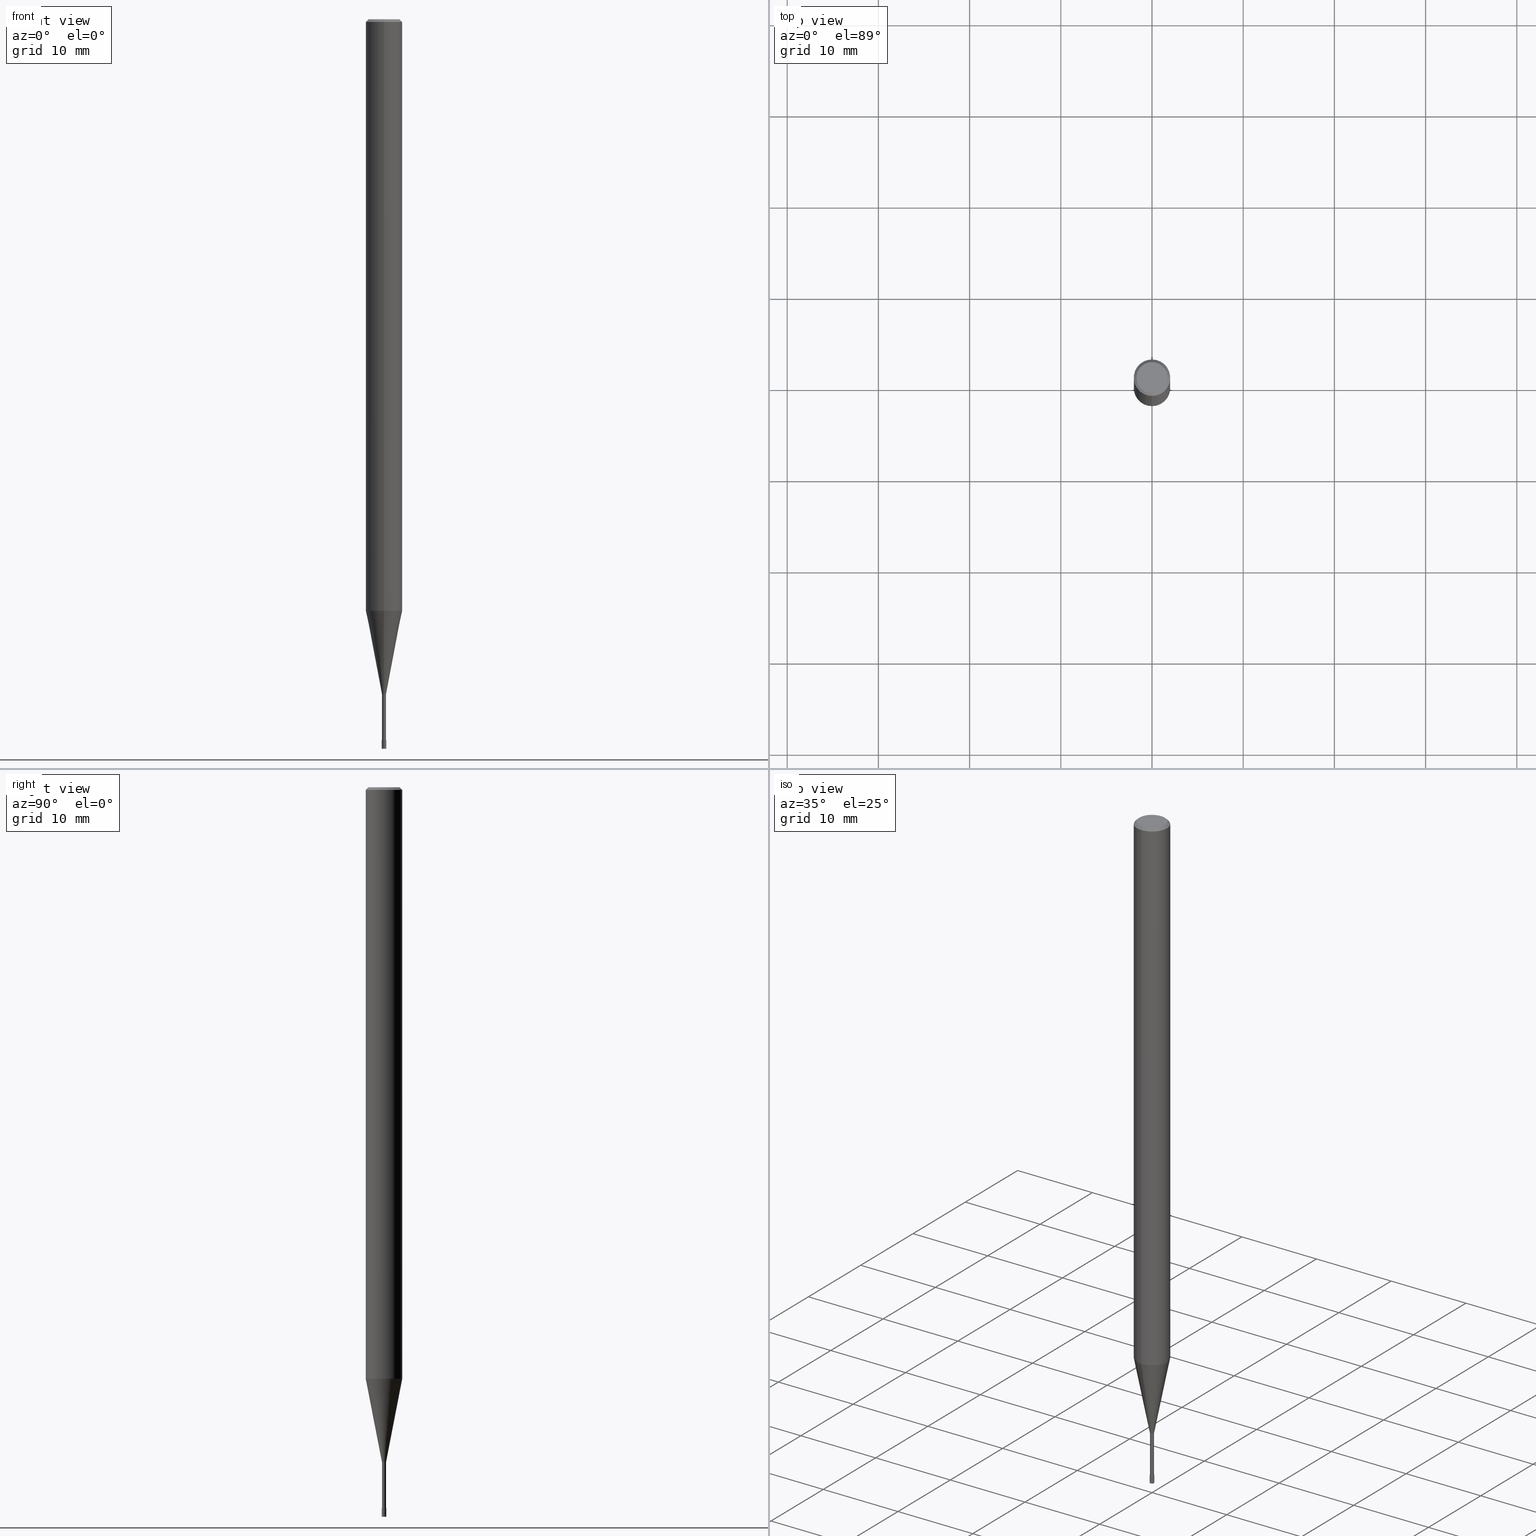
[diagram: canonical four-view strip — front | top / right | iso, engineering-drawing reading convention]
A machine part, canonical four-view strip (front | top / right | iso — engineering-drawing reading convention). The complete STEP part file that produces these views, byte-faithful:
ISO-10303-21;
HEADER;
FILE_DESCRIPTION(('no description'),'unknown implementation level');
FILE_NAME('CPRL2005-6-Huellk.stp','  ',('CIMSOURCE GmbH'),('CADClick - KiM GmbH - www.kimweb.de'),'unknown preprocess','ACIS','unknown authorization');
FILE_SCHEMA(('automotive_design'));
ENDSEC;
DATA;
#1=MECHANICAL_DESIGN_GEOMETRIC_PRESENTATION_REPRESENTATION(' ',(#14,#15,#16,#17,#18,#19,#20,#21,#22,#23,#24,#25,#26,#27,#28,#29,#30,#31,#32,#33,#34,#35,#36,#37,#38,#39,#40,#41,#42,#43,#44,#45,#46,#47,#48,#49,#50,#51,#52,#53,#54,#55,#56,#57,#58,#59,#60,#61,#62,#63,#64,#65,#66,#67,#68,#69,#70,#71,#72),#10);
#2=PRODUCT_DEFINITION_CONTEXT('',#73,'design');
#3=APPLICATION_PROTOCOL_DEFINITION('INTERNATIONAL STANDARD','automotive_design',1994,#73);
#4=PRODUCT_CATEGORY_RELATIONSHIP('NONE','NONE',#74,#75);
#5=SHAPE_DEFINITION_REPRESENTATION(#76,#77);
#6=PRODUCT_DEFINITION_CONTEXT('',#78,'design');
#7=APPLICATION_PROTOCOL_DEFINITION('INTERNATIONAL STANDARD','automotive_design',1994,#78);
#8=PRODUCT_CATEGORY_RELATIONSHIP('NONE','NONE',#79,#80);
#9=SHAPE_DEFINITION_REPRESENTATION(#81,#82);
#10= (GEOMETRIC_REPRESENTATION_CONTEXT(3)GLOBAL_UNCERTAINTY_ASSIGNED_CONTEXT((#85))GLOBAL_UNIT_ASSIGNED_CONTEXT((#87,#88,#89))REPRESENTATION_CONTEXT('NONE','WORKSPACE'));
#14=STYLED_ITEM('',(#91),#92);
#15=STYLED_ITEM('',(#93),#94);
#16=STYLED_ITEM('',(#95),#96);
#17=STYLED_ITEM('',(#97),#98);
#18=STYLED_ITEM('',(#99),#100);
#19=STYLED_ITEM('',(#101),#102);
#20=STYLED_ITEM('',(#103),#104);
#21=STYLED_ITEM('',(#105),#106);
#22=STYLED_ITEM('',(#107),#108);
#23=STYLED_ITEM('',(#109),#110);
#24=STYLED_ITEM('',(#111),#112);
#25=STYLED_ITEM('',(#113),#114);
#26=STYLED_ITEM('',(#115),#116);
#27=STYLED_ITEM('',(#117),#118);
#28=STYLED_ITEM('',(#119),#120);
#29=STYLED_ITEM('',(#121),#122);
#30=STYLED_ITEM('',(#123),#124);
#31=STYLED_ITEM('',(#125),#126);
#32=STYLED_ITEM('',(#127),#128);
#33=STYLED_ITEM('',(#129),#130);
#34=STYLED_ITEM('',(#131),#132);
#35=STYLED_ITEM('',(#133),#134);
#36=STYLED_ITEM('',(#135),#136);
#37=STYLED_ITEM('',(#137),#138);
#38=STYLED_ITEM('',(#139),#140);
#39=STYLED_ITEM('',(#141),#142);
#40=STYLED_ITEM('',(#143),#144);
#41=STYLED_ITEM('',(#145),#146);
#42=STYLED_ITEM('',(#147),#148);
#43=STYLED_ITEM('',(#149),#150);
#44=STYLED_ITEM('',(#151),#152);
#45=STYLED_ITEM('',(#153),#154);
#46=STYLED_ITEM('',(#155),#156);
#47=STYLED_ITEM('',(#157),#158);
#48=STYLED_ITEM('',(#159),#160);
#49=STYLED_ITEM('',(#161),#162);
#50=STYLED_ITEM('',(#163),#164);
#51=STYLED_ITEM('',(#165),#166);
#52=STYLED_ITEM('',(#167),#168);
#53=STYLED_ITEM('',(#169),#170);
#54=STYLED_ITEM('',(#171),#172);
#55=STYLED_ITEM('',(#173),#174);
#56=STYLED_ITEM('',(#175),#176);
#57=STYLED_ITEM('',(#177),#178);
#58=STYLED_ITEM('',(#179),#180);
#59=STYLED_ITEM('',(#181),#182);
#60=STYLED_ITEM('',(#183),#184);
#61=STYLED_ITEM('',(#185),#186);
#62=STYLED_ITEM('',(#187),#188);
#63=STYLED_ITEM('',(#189),#190);
#64=STYLED_ITEM('',(#191),#192);
#65=STYLED_ITEM('',(#193),#194);
#66=STYLED_ITEM('',(#195),#196);
#67=STYLED_ITEM('',(#197),#198);
#68=STYLED_ITEM('',(#199),#200);
#69=STYLED_ITEM('',(#201),#202);
#70=STYLED_ITEM('',(#203),#204);
#71=STYLED_ITEM('',(#205),#206);
#72=STYLED_ITEM('',(#207),#208);
#73=APPLICATION_CONTEXT(' ');
#74=PRODUCT_CATEGORY('part','NONE');
#75=PRODUCT_RELATED_PRODUCT_CATEGORY('detail',' ',(#209));
#76=PRODUCT_DEFINITION_SHAPE('NONE','NONE',#210);
#77=ADVANCED_BREP_SHAPE_REPRESENTATION('1',(#106,#211),#10);
#78=APPLICATION_CONTEXT(' ');
#79=PRODUCT_CATEGORY('part','NONE');
#80=PRODUCT_RELATED_PRODUCT_CATEGORY('detail',' ',(#212));
#81=PRODUCT_DEFINITION_SHAPE('NONE','NONE',#213);
#82=ADVANCED_BREP_SHAPE_REPRESENTATION('2',(#120,#214),#10);
#85=UNCERTAINTY_MEASURE_WITH_UNIT(LENGTH_MEASURE(1.0E-006),#87,'','');
#87= (CONVERSION_BASED_UNIT('MILLIMETRE',#217)LENGTH_UNIT()NAMED_UNIT(#220));
#88= (NAMED_UNIT(#222)PLANE_ANGLE_UNIT()SI_UNIT($,.RADIAN.));
#89= (NAMED_UNIT(#222)SOLID_ANGLE_UNIT()SI_UNIT($,.STERADIAN.));
#91=PRESENTATION_STYLE_ASSIGNMENT((#228));
#92=VERTEX_POINT('',#229);
#93=PRESENTATION_STYLE_ASSIGNMENT((#230));
#94=ADVANCED_FACE('',(#231),#232,.T.);
#95=PRESENTATION_STYLE_ASSIGNMENT((#233));
#96=ADVANCED_FACE('',(#234),#235,.T.);
#97=PRESENTATION_STYLE_ASSIGNMENT((#236));
#98=ADVANCED_FACE('',(#237),#238,.T.);
#99=PRESENTATION_STYLE_ASSIGNMENT((#239));
#100=VERTEX_POINT('',#240);
#101=PRESENTATION_STYLE_ASSIGNMENT((#241));
#102=ADVANCED_FACE('',(#242),#243,.T.);
#103=PRESENTATION_STYLE_ASSIGNMENT((#244));
#104=VERTEX_POINT('',#245);
#105=PRESENTATION_STYLE_ASSIGNMENT((#246));
#106=MANIFOLD_SOLID_BREP('1',#247);
#107=PRESENTATION_STYLE_ASSIGNMENT((#248));
#108=EDGE_CURVE('',#152,#170,#249,.T.);
#109=PRESENTATION_STYLE_ASSIGNMENT((#250));
#110=ADVANCED_FACE('',(#251),#252,.T.);
#111=PRESENTATION_STYLE_ASSIGNMENT((#253));
#112=ADVANCED_FACE('',(#254),#255,.T.);
#113=PRESENTATION_STYLE_ASSIGNMENT((#256));
#114=VERTEX_POINT('',#257);
#115=PRESENTATION_STYLE_ASSIGNMENT((#258));
#116=EDGE_CURVE('',#182,#176,#259,.T.);
#117=PRESENTATION_STYLE_ASSIGNMENT((#260));
#118=ADVANCED_FACE('',(#261),#262,.T.);
#119=PRESENTATION_STYLE_ASSIGNMENT((#263));
#120=MANIFOLD_SOLID_BREP('2',#264);
#121=PRESENTATION_STYLE_ASSIGNMENT((#265));
#122=VERTEX_POINT('',#266);
#123=PRESENTATION_STYLE_ASSIGNMENT((#267));
#124=EDGE_CURVE('',#170,#100,#268,.T.);
#125=PRESENTATION_STYLE_ASSIGNMENT((#269));
#126=EDGE_CURVE('',#152,#200,#270,.T.);
#127=PRESENTATION_STYLE_ASSIGNMENT((#271));
#128=EDGE_CURVE('',#182,#122,#272,.T.);
#129=PRESENTATION_STYLE_ASSIGNMENT((#273));
#130=ADVANCED_FACE('',(#274),#275,.T.);
#131=PRESENTATION_STYLE_ASSIGNMENT((#276));
#132=VERTEX_POINT('',#277);
#133=PRESENTATION_STYLE_ASSIGNMENT((#278));
#134=EDGE_CURVE('',#132,#182,#279,.T.);
#135=PRESENTATION_STYLE_ASSIGNMENT((#280));
#136=EDGE_CURVE('',#196,#176,#281,.T.);
#137=PRESENTATION_STYLE_ASSIGNMENT((#282));
#138=EDGE_CURVE('',#200,#152,#283,.T.);
#139=PRESENTATION_STYLE_ASSIGNMENT((#284));
#140=EDGE_CURVE('',#176,#182,#285,.T.);
#141=PRESENTATION_STYLE_ASSIGNMENT((#286));
#142=EDGE_CURVE('',#164,#204,#287,.T.);
#143=PRESENTATION_STYLE_ASSIGNMENT((#288));
#144=EDGE_CURVE('',#204,#190,#289,.T.);
#145=PRESENTATION_STYLE_ASSIGNMENT((#290));
#146=EDGE_CURVE('',#200,#104,#291,.T.);
#147=PRESENTATION_STYLE_ASSIGNMENT((#292));
#148=EDGE_CURVE('',#176,#92,#293,.T.);
#149=PRESENTATION_STYLE_ASSIGNMENT((#294));
#150=EDGE_CURVE('',#132,#92,#295,.T.);
#151=PRESENTATION_STYLE_ASSIGNMENT((#296));
#152=VERTEX_POINT('',#297);
#153=PRESENTATION_STYLE_ASSIGNMENT((#298));
#154=EDGE_CURVE('',#100,#170,#299,.T.);
#155=PRESENTATION_STYLE_ASSIGNMENT((#300));
#156=ADVANCED_FACE('',(#301),#302,.T.);
#157=PRESENTATION_STYLE_ASSIGNMENT((#303));
#158=EDGE_CURVE('',#114,#164,#304,.T.);
#159=PRESENTATION_STYLE_ASSIGNMENT((#305));
#160=EDGE_CURVE('',#180,#104,#306,.T.);
#161=PRESENTATION_STYLE_ASSIGNMENT((#307));
#162=EDGE_CURVE('',#164,#114,#308,.T.);
#163=PRESENTATION_STYLE_ASSIGNMENT((#309));
#164=VERTEX_POINT('',#310);
#165=PRESENTATION_STYLE_ASSIGNMENT((#311));
#166=ADVANCED_FACE('',(#312),#313,.T.);
#167=PRESENTATION_STYLE_ASSIGNMENT((#314));
#168=ADVANCED_FACE('',(#315),#316,.T.);
#169=PRESENTATION_STYLE_ASSIGNMENT((#317));
#170=VERTEX_POINT('',#318);
#171=PRESENTATION_STYLE_ASSIGNMENT((#319));
#172=EDGE_CURVE('',#122,#196,#320,.T.);
#173=PRESENTATION_STYLE_ASSIGNMENT((#321));
#174=EDGE_CURVE('',#92,#132,#322,.T.);
#175=PRESENTATION_STYLE_ASSIGNMENT((#323));
#176=VERTEX_POINT('',#324);
#177=PRESENTATION_STYLE_ASSIGNMENT((#325));
#178=EDGE_CURVE('',#196,#122,#326,.T.);
#179=PRESENTATION_STYLE_ASSIGNMENT((#327));
#180=VERTEX_POINT('',#328);
#181=PRESENTATION_STYLE_ASSIGNMENT((#329));
#182=VERTEX_POINT('',#330);
#183=PRESENTATION_STYLE_ASSIGNMENT((#331));
#184=ADVANCED_FACE('',(#332),#333,.T.);
#185=PRESENTATION_STYLE_ASSIGNMENT((#334));
#186=EDGE_CURVE('',#100,#200,#335,.T.);
#187=PRESENTATION_STYLE_ASSIGNMENT((#336));
#188=EDGE_CURVE('',#190,#114,#337,.T.);
#189=PRESENTATION_STYLE_ASSIGNMENT((#338));
#190=VERTEX_POINT('',#339);
#191=PRESENTATION_STYLE_ASSIGNMENT((#340));
#192=ADVANCED_FACE('',(#341),#342,.T.);
#193=PRESENTATION_STYLE_ASSIGNMENT((#343));
#194=EDGE_CURVE('',#180,#152,#344,.T.);
#195=PRESENTATION_STYLE_ASSIGNMENT((#345));
#196=VERTEX_POINT('',#346);
#197=PRESENTATION_STYLE_ASSIGNMENT((#347));
#198=ADVANCED_FACE('',(#348),#349,.T.);
#199=PRESENTATION_STYLE_ASSIGNMENT((#350));
#200=VERTEX_POINT('',#351);
#201=PRESENTATION_STYLE_ASSIGNMENT((#352));
#202=EDGE_CURVE('',#104,#180,#353,.T.);
#203=PRESENTATION_STYLE_ASSIGNMENT((#354));
#204=VERTEX_POINT('',#355);
#205=PRESENTATION_STYLE_ASSIGNMENT((#356));
#206=ADVANCED_FACE('',(#357,#358),#359,.T.);
#207=PRESENTATION_STYLE_ASSIGNMENT((#360));
#208=EDGE_CURVE('',#190,#204,#361,.T.);
#209=PRODUCT('1','1','PART-1-DESC',(#362));
#210=PRODUCT_DEFINITION('NONE','NONE',#363,#2);
#211=AXIS2_PLACEMENT_3D('',#364,#365,#366);
#212=PRODUCT('2','2','PART-2-DESC',(#367));
#213=PRODUCT_DEFINITION('NONE','NONE',#368,#6);
#214=AXIS2_PLACEMENT_3D('',#369,#370,#371);
#217=LENGTH_MEASURE_WITH_UNIT(LENGTH_MEASURE(1.0),#372);
#220=DIMENSIONAL_EXPONENTS(1.0,0.0,0.0,0.0,0.0,0.0,0.0);
#222=DIMENSIONAL_EXPONENTS(0.0,0.0,0.0,0.0,0.0,0.0,0.0);
#228=POINT_STYLE(' ',#373,POSITIVE_LENGTH_MEASURE(1.0E-006),#374);
#229=CARTESIAN_POINT('',(0.0,2.0,-64.868));
#230=SURFACE_STYLE_USAGE(.BOTH.,#375);
#231=FACE_OUTER_BOUND('',#376,.T.);
#232=CYLINDRICAL_SURFACE('',#377,2.0);
#233=SURFACE_STYLE_USAGE(.BOTH.,#378);
#234=FACE_OUTER_BOUND('',#379,.T.);
#235=PLANE('',#380);
#236=SURFACE_STYLE_USAGE(.BOTH.,#381);
#237=FACE_OUTER_BOUND('',#382,.T.);
#238=CYLINDRICAL_SURFACE('',#383,2.0);
#239=POINT_STYLE(' ',#384,POSITIVE_LENGTH_MEASURE(1.0E-006),#385);
#240=CARTESIAN_POINT('',(0.0,1.99995,-64.868));
#241=SURFACE_STYLE_USAGE(.BOTH.,#386);
#242=FACE_OUTER_BOUND('',#387,.T.);
#243=PLANE('',#388);
#244=POINT_STYLE(' ',#389,POSITIVE_LENGTH_MEASURE(1.0E-006),#390);
#245=CARTESIAN_POINT('',(0.0,0.22495,-79.0));
#246=SURFACE_STYLE_USAGE(.BOTH.,#391);
#247=CLOSED_SHELL('',(#110,#112,#94,#118,#206,#102,#168,#98,#156,#198,#130));
#248=CURVE_STYLE('',#392,POSITIVE_LENGTH_MEASURE(1.0E-006),#393);
#249=LINE('',#394,#395);
#250=SURFACE_STYLE_USAGE(.BOTH.,#396);
#251=FACE_OUTER_BOUND('',#397,.T.);
#252=CYLINDRICAL_SURFACE('',#398,0.22495);
#253=SURFACE_STYLE_USAGE(.BOTH.,#399);
#254=FACE_OUTER_BOUND('',#400,.T.);
#255=CONICAL_SURFACE('',#401,1.11245,0.191977672522416);
#256=POINT_STYLE(' ',#402,POSITIVE_LENGTH_MEASURE(1.0E-006),#403);
#257=CARTESIAN_POINT('',(0.0,0.25,-80.0));
#258=CURVE_STYLE('',#404,POSITIVE_LENGTH_MEASURE(1.0E-006),#405);
#259=CIRCLE('',#406,2.0);
#260=SURFACE_STYLE_USAGE(.BOTH.,#407);
#261=FACE_OUTER_BOUND('',#408,.T.);
#262=CONICAL_SURFACE('',#409,1.85,0.785398163397453);
#263=SURFACE_STYLE_USAGE(.BOTH.,#410);
#264=CLOSED_SHELL('',(#192,#96,#166,#184));
#265=POINT_STYLE(' ',#411,POSITIVE_LENGTH_MEASURE(1.0E-006),#412);
#266=CARTESIAN_POINT('',(2.08183080149804E-016,-1.7,0.0));
#267=CURVE_STYLE('',#413,POSITIVE_LENGTH_MEASURE(1.0E-006),#414);
#268=CIRCLE('',#415,1.99995);
#269=CURVE_STYLE('',#416,POSITIVE_LENGTH_MEASURE(1.0E-006),#417);
#270=CIRCLE('',#418,0.22495);
#271=CURVE_STYLE('',#419,POSITIVE_LENGTH_MEASURE(1.0E-006),#420);
#272=LINE('',#421,#422);
#273=SURFACE_STYLE_USAGE(.BOTH.,#423);
#274=FACE_OUTER_BOUND('',#424,.T.);
#275=PLANE('',#425);
#276=POINT_STYLE(' ',#426,POSITIVE_LENGTH_MEASURE(1.0E-006),#427);
#277=CARTESIAN_POINT('',(2.44921270764475E-016,-2.0,-64.868));
#278=CURVE_STYLE('',#428,POSITIVE_LENGTH_MEASURE(1.0E-006),#429);
#279=LINE('',#430,#431);
#280=CURVE_STYLE('',#432,POSITIVE_LENGTH_MEASURE(1.0E-006),#433);
#281=LINE('',#434,#435);
#282=CURVE_STYLE('',#436,POSITIVE_LENGTH_MEASURE(1.0E-006),#437);
#283=CIRCLE('',#438,0.22495);
#284=CURVE_STYLE('',#439,POSITIVE_LENGTH_MEASURE(1.0E-006),#440);
#285=CIRCLE('',#441,2.0);
#286=CURVE_STYLE('',#442,POSITIVE_LENGTH_MEASURE(1.0E-006),#443);
#287=LINE('',#444,#445);
#288=CURVE_STYLE('',#446,POSITIVE_LENGTH_MEASURE(1.0E-006),#447);
#289=CIRCLE('',#448,0.2499);
#290=CURVE_STYLE('',#449,POSITIVE_LENGTH_MEASURE(1.0E-006),#450);
#291=LINE('',#451,#452);
#292=CURVE_STYLE('',#453,POSITIVE_LENGTH_MEASURE(1.0E-006),#454);
#293=LINE('',#455,#456);
#294=CURVE_STYLE('',#457,POSITIVE_LENGTH_MEASURE(1.0E-006),#458);
#295=CIRCLE('',#459,2.0);
#296=POINT_STYLE(' ',#460,POSITIVE_LENGTH_MEASURE(1.0E-006),#461);
#297=CARTESIAN_POINT('',(2.75475199292344E-017,-0.22495,-74.0));
#298=CURVE_STYLE('',#462,POSITIVE_LENGTH_MEASURE(1.0E-006),#463);
#299=CIRCLE('',#464,1.99995);
#300=SURFACE_STYLE_USAGE(.BOTH.,#465);
#301=FACE_OUTER_BOUND('',#466,.T.);
#302=CONICAL_SURFACE('',#467,1.11245,0.191977672522416);
#303=CURVE_STYLE('',#468,POSITIVE_LENGTH_MEASURE(1.0E-006),#469);
#304=CIRCLE('',#470,0.25);
#305=CURVE_STYLE('',#471,POSITIVE_LENGTH_MEASURE(1.0E-006),#472);
#306=CIRCLE('',#473,0.22495);
#307=CURVE_STYLE('',#474,POSITIVE_LENGTH_MEASURE(1.0E-006),#475);
#308=CIRCLE('',#476,0.25);
#309=POINT_STYLE(' ',#477,POSITIVE_LENGTH_MEASURE(1.0E-006),#478);
#310=CARTESIAN_POINT('',(3.06151588455594E-017,-0.25,-80.0));
#311=SURFACE_STYLE_USAGE(.BOTH.,#479);
#312=FACE_OUTER_BOUND('',#480,.T.);
#313=CONICAL_SURFACE('',#481,0.24995,9.99999996666557E-005);
#314=SURFACE_STYLE_USAGE(.BOTH.,#482);
#315=FACE_OUTER_BOUND('',#483,.T.);
#316=CONICAL_SURFACE('',#484,1.85,0.785398163397453);
#317=POINT_STYLE(' ',#485,POSITIVE_LENGTH_MEASURE(1.0E-006),#486);
#318=CARTESIAN_POINT('',(2.44915147732706E-016,-1.99995,-64.868));
#319=CURVE_STYLE('',#487,POSITIVE_LENGTH_MEASURE(1.0E-006),#488);
#320=CIRCLE('',#489,1.7);
#321=CURVE_STYLE('',#490,POSITIVE_LENGTH_MEASURE(1.0E-006),#491);
#322=CIRCLE('',#492,2.0);
#323=POINT_STYLE(' ',#493,POSITIVE_LENGTH_MEASURE(1.0E-006),#494);
#324=CARTESIAN_POINT('',(0.0,2.0,-0.299999999999997));
#325=CURVE_STYLE('',#495,POSITIVE_LENGTH_MEASURE(1.0E-006),#496);
#326=CIRCLE('',#497,1.7);
#327=POINT_STYLE(' ',#498,POSITIVE_LENGTH_MEASURE(1.0E-006),#499);
#328=CARTESIAN_POINT('',(2.75475199292344E-017,-0.22495,-79.0));
#329=POINT_STYLE(' ',#500,POSITIVE_LENGTH_MEASURE(1.0E-006),#501);
#330=CARTESIAN_POINT('',(2.44921270764475E-016,-2.0,-0.299999999999997));
#331=SURFACE_STYLE_USAGE(.BOTH.,#502);
#332=FACE_OUTER_BOUND('',#503,.T.);
#333=PLANE('',#504);
#334=CURVE_STYLE('',#505,POSITIVE_LENGTH_MEASURE(1.0E-006),#506);
#335=LINE('',#507,#508);
#336=CURVE_STYLE('',#509,POSITIVE_LENGTH_MEASURE(1.0E-006),#510);
#337=LINE('',#511,#512);
#338=POINT_STYLE(' ',#513,POSITIVE_LENGTH_MEASURE(1.0E-006),#514);
#339=CARTESIAN_POINT('',(0.0,0.2499,-79.0));
#340=SURFACE_STYLE_USAGE(.BOTH.,#515);
#341=FACE_OUTER_BOUND('',#516,.T.);
#342=CONICAL_SURFACE('',#517,0.24995,9.99999996666557E-005);
#343=CURVE_STYLE('',#518,POSITIVE_LENGTH_MEASURE(1.0E-006),#519);
#344=LINE('',#520,#521);
#345=POINT_STYLE(' ',#522,POSITIVE_LENGTH_MEASURE(1.0E-006),#523);
#346=CARTESIAN_POINT('',(0.0,1.7,0.0));
#347=SURFACE_STYLE_USAGE(.BOTH.,#524);
#348=FACE_OUTER_BOUND('',#525,.T.);
#349=CYLINDRICAL_SURFACE('',#526,0.22495);
#350=POINT_STYLE(' ',#527,POSITIVE_LENGTH_MEASURE(1.0E-006),#528);
#351=CARTESIAN_POINT('',(0.0,0.22495,-74.0));
#352=CURVE_STYLE('',#529,POSITIVE_LENGTH_MEASURE(1.0E-006),#530);
#353=CIRCLE('',#531,0.22495);
#354=POINT_STYLE(' ',#532,POSITIVE_LENGTH_MEASURE(1.0E-006),#533);
#355=CARTESIAN_POINT('',(3.06029127820212E-017,-0.2499,-79.0));
#356=SURFACE_STYLE_USAGE(.BOTH.,#534);
#357=FACE_OUTER_BOUND('',#535,.T.);
#358=FACE_BOUND('',#536,.T.);
#359=PLANE('',#537);
#360=CURVE_STYLE('',#538,POSITIVE_LENGTH_MEASURE(1.0E-006),#539);
#361=CIRCLE('',#540,0.2499);
#362=PRODUCT_CONTEXT('',#73,'mechanical');
#363=PRODUCT_DEFINITION_FORMATION_WITH_SPECIFIED_SOURCE(' ','NONE',#209,.NOT_KNOWN.);
#364=CARTESIAN_POINT('',(0.0,0.0,0.0));
#365=DIRECTION('',(0.0,0.0,1.0));
#366=DIRECTION('',(1.0,0.0,0.0));
#367=PRODUCT_CONTEXT('',#78,'mechanical');
#368=PRODUCT_DEFINITION_FORMATION_WITH_SPECIFIED_SOURCE(' ','NONE',#212,.NOT_KNOWN.);
#369=CARTESIAN_POINT('',(0.0,0.0,0.0));
#370=DIRECTION('',(0.0,0.0,1.0));
#371=DIRECTION('',(1.0,0.0,0.0));
#372= (NAMED_UNIT(#220)LENGTH_UNIT()SI_UNIT(.MILLI.,.METRE.));
#373=PRE_DEFINED_MARKER('');
#374=COLOUR_RGB('',0.498039215803146,0.498039215803146,0.498039215803146);
#375=SURFACE_SIDE_STYLE('',(#542));
#376=EDGE_LOOP('',(#543,#544,#545,#546));
#377=AXIS2_PLACEMENT_3D('',#547,#548,#549);
#378=SURFACE_SIDE_STYLE('',(#550));
#379=EDGE_LOOP('',(#551,#552));
#380=AXIS2_PLACEMENT_3D('',#553,#554,#555);
#381=SURFACE_SIDE_STYLE('',(#556));
#382=EDGE_LOOP('',(#557,#558,#559,#560));
#383=AXIS2_PLACEMENT_3D('',#561,#562,#563);
#384=PRE_DEFINED_MARKER('');
#385=COLOUR_RGB('',0.498039215803146,0.498039215803146,0.498039215803146);
#386=SURFACE_SIDE_STYLE('',(#564));
#387=EDGE_LOOP('',(#565,#566));
#388=AXIS2_PLACEMENT_3D('',#567,#568,#569);
#389=PRE_DEFINED_MARKER('');
#390=COLOUR_RGB('',0.498039215803146,0.498039215803146,0.498039215803146);
#391=SURFACE_SIDE_STYLE('',(#570));
#392=DRAUGHTING_PRE_DEFINED_CURVE_FONT('continuous');
#393=COLOUR_RGB('',0.498039215803146,0.498039215803146,0.498039215803146);
#394=CARTESIAN_POINT('',(1.3623133383097E-016,-1.11245,-69.434));
#395=VECTOR('',#571,1.0);
#396=SURFACE_SIDE_STYLE('',(#572));
#397=EDGE_LOOP('',(#573,#574,#575,#576));
#398=AXIS2_PLACEMENT_3D('',#577,#578,#579);
#399=SURFACE_SIDE_STYLE('',(#580));
#400=EDGE_LOOP('',(#581,#582,#583,#584));
#401=AXIS2_PLACEMENT_3D('',#585,#586,#587);
#402=PRE_DEFINED_MARKER('');
#403=COLOUR_RGB('',0.800000011920929,0.800000011920929,0.800000011920929);
#404=DRAUGHTING_PRE_DEFINED_CURVE_FONT('continuous');
#405=COLOUR_RGB('',0.498039215803146,0.498039215803146,0.498039215803146);
#406=AXIS2_PLACEMENT_3D('',#588,#589,#590);
#407=SURFACE_SIDE_STYLE('',(#591));
#408=EDGE_LOOP('',(#592,#593,#594,#595));
#409=AXIS2_PLACEMENT_3D('',#596,#597,#598);
#410=SURFACE_SIDE_STYLE('',(#599));
#411=PRE_DEFINED_MARKER('');
#412=COLOUR_RGB('',0.498039215803146,0.498039215803146,0.498039215803146);
#413=DRAUGHTING_PRE_DEFINED_CURVE_FONT('continuous');
#414=COLOUR_RGB('',0.498039215803146,0.498039215803146,0.498039215803146);
#415=AXIS2_PLACEMENT_3D('',#600,#601,#602);
#416=DRAUGHTING_PRE_DEFINED_CURVE_FONT('continuous');
#417=COLOUR_RGB('',0.498039215803146,0.498039215803146,0.498039215803146);
#418=AXIS2_PLACEMENT_3D('',#603,#604,#605);
#419=DRAUGHTING_PRE_DEFINED_CURVE_FONT('continuous');
#420=COLOUR_RGB('',0.498039215803146,0.498039215803146,0.498039215803146);
#421=CARTESIAN_POINT('',(2.2655217545714E-016,-1.85,-0.150000000000006));
#422=VECTOR('',#606,1.0);
#423=SURFACE_SIDE_STYLE('',(#607));
#424=EDGE_LOOP('',(#608,#609));
#425=AXIS2_PLACEMENT_3D('',#610,#611,#612);
#426=PRE_DEFINED_MARKER('');
#427=COLOUR_RGB('',0.498039215803146,0.498039215803146,0.498039215803146);
#428=DRAUGHTING_PRE_DEFINED_CURVE_FONT('continuous');
#429=COLOUR_RGB('',0.498039215803146,0.498039215803146,0.498039215803146);
#430=CARTESIAN_POINT('',(2.44921270764475E-016,-2.0,-32.584));
#431=VECTOR('',#613,1.0);
#432=DRAUGHTING_PRE_DEFINED_CURVE_FONT('continuous');
#433=COLOUR_RGB('',0.498039215803146,0.498039215803146,0.498039215803146);
#434=CARTESIAN_POINT('',(-2.2655217545714E-016,1.85,-0.150000000000006));
#435=VECTOR('',#614,1.0);
#436=DRAUGHTING_PRE_DEFINED_CURVE_FONT('continuous');
#437=COLOUR_RGB('',0.498039215803146,0.498039215803146,0.498039215803146);
#438=AXIS2_PLACEMENT_3D('',#615,#616,#617);
#439=DRAUGHTING_PRE_DEFINED_CURVE_FONT('continuous');
#440=COLOUR_RGB('',0.498039215803146,0.498039215803146,0.498039215803146);
#441=AXIS2_PLACEMENT_3D('',#618,#619,#620);
#442=DRAUGHTING_PRE_DEFINED_CURVE_FONT('continuous');
#443=COLOUR_RGB('',0.800000011920929,0.800000011920929,0.800000011920929);
#444=CARTESIAN_POINT('',(3.06090358137903E-017,-0.24995,-79.5));
#445=VECTOR('',#621,1.0);
#446=DRAUGHTING_PRE_DEFINED_CURVE_FONT('continuous');
#447=COLOUR_RGB('',0.800000011920929,0.800000011920929,0.800000011920929);
#448=AXIS2_PLACEMENT_3D('',#622,#623,#624);
#449=DRAUGHTING_PRE_DEFINED_CURVE_FONT('continuous');
#450=COLOUR_RGB('',0.498039215803146,0.498039215803146,0.498039215803146);
#451=CARTESIAN_POINT('',(-2.75475199292344E-017,0.22495,-76.5));
#452=VECTOR('',#625,1.0);
#453=DRAUGHTING_PRE_DEFINED_CURVE_FONT('continuous');
#454=COLOUR_RGB('',0.498039215803146,0.498039215803146,0.498039215803146);
#455=CARTESIAN_POINT('',(-2.44921270764475E-016,2.0,-32.584));
#456=VECTOR('',#626,1.0);
#457=DRAUGHTING_PRE_DEFINED_CURVE_FONT('continuous');
#458=COLOUR_RGB('',0.498039215803146,0.498039215803146,0.498039215803146);
#459=AXIS2_PLACEMENT_3D('',#627,#628,#629);
#460=PRE_DEFINED_MARKER('');
#461=COLOUR_RGB('',0.498039215803146,0.498039215803146,0.498039215803146);
#462=DRAUGHTING_PRE_DEFINED_CURVE_FONT('continuous');
#463=COLOUR_RGB('',0.498039215803146,0.498039215803146,0.498039215803146);
#464=AXIS2_PLACEMENT_3D('',#630,#631,#632);
#465=SURFACE_SIDE_STYLE('',(#633));
#466=EDGE_LOOP('',(#634,#635,#636,#637));
#467=AXIS2_PLACEMENT_3D('',#638,#639,#640);
#468=DRAUGHTING_PRE_DEFINED_CURVE_FONT('continuous');
#469=COLOUR_RGB('',0.800000011920929,0.800000011920929,0.800000011920929);
#470=AXIS2_PLACEMENT_3D('',#641,#642,#643);
#471=DRAUGHTING_PRE_DEFINED_CURVE_FONT('continuous');
#472=COLOUR_RGB('',0.498039215803146,0.498039215803146,0.498039215803146);
#473=AXIS2_PLACEMENT_3D('',#644,#645,#646);
#474=DRAUGHTING_PRE_DEFINED_CURVE_FONT('continuous');
#475=COLOUR_RGB('',0.800000011920929,0.800000011920929,0.800000011920929);
#476=AXIS2_PLACEMENT_3D('',#647,#648,#649);
#477=PRE_DEFINED_MARKER('');
#478=COLOUR_RGB('',0.800000011920929,0.800000011920929,0.800000011920929);
#479=SURFACE_SIDE_STYLE('',(#650));
#480=EDGE_LOOP('',(#651,#652,#653,#654));
#481=AXIS2_PLACEMENT_3D('',#655,#656,#657);
#482=SURFACE_SIDE_STYLE('',(#658));
#483=EDGE_LOOP('',(#659,#660,#661,#662));
#484=AXIS2_PLACEMENT_3D('',#663,#664,#665);
#485=PRE_DEFINED_MARKER('');
#486=COLOUR_RGB('',0.498039215803146,0.498039215803146,0.498039215803146);
#487=DRAUGHTING_PRE_DEFINED_CURVE_FONT('continuous');
#488=COLOUR_RGB('',0.498039215803146,0.498039215803146,0.498039215803146);
#489=AXIS2_PLACEMENT_3D('',#666,#667,#668);
#490=DRAUGHTING_PRE_DEFINED_CURVE_FONT('continuous');
#491=COLOUR_RGB('',0.498039215803146,0.498039215803146,0.498039215803146);
#492=AXIS2_PLACEMENT_3D('',#669,#670,#671);
#493=PRE_DEFINED_MARKER('');
#494=COLOUR_RGB('',0.498039215803146,0.498039215803146,0.498039215803146);
#495=DRAUGHTING_PRE_DEFINED_CURVE_FONT('continuous');
#496=COLOUR_RGB('',0.498039215803146,0.498039215803146,0.498039215803146);
#497=AXIS2_PLACEMENT_3D('',#672,#673,#674);
#498=PRE_DEFINED_MARKER('');
#499=COLOUR_RGB('',0.498039215803146,0.498039215803146,0.498039215803146);
#500=PRE_DEFINED_MARKER('');
#501=COLOUR_RGB('',0.498039215803146,0.498039215803146,0.498039215803146);
#502=SURFACE_SIDE_STYLE('',(#675));
#503=EDGE_LOOP('',(#676,#677));
#504=AXIS2_PLACEMENT_3D('',#678,#679,#680);
#505=DRAUGHTING_PRE_DEFINED_CURVE_FONT('continuous');
#506=COLOUR_RGB('',0.498039215803146,0.498039215803146,0.498039215803146);
#507=CARTESIAN_POINT('',(-1.3623133383097E-016,1.11245,-69.434));
#508=VECTOR('',#681,1.0);
#509=DRAUGHTING_PRE_DEFINED_CURVE_FONT('continuous');
#510=COLOUR_RGB('',0.800000011920929,0.800000011920929,0.800000011920929);
#511=CARTESIAN_POINT('',(-3.06090358137903E-017,0.24995,-79.5));
#512=VECTOR('',#682,1.0);
#513=PRE_DEFINED_MARKER('');
#514=COLOUR_RGB('',0.800000011920929,0.800000011920929,0.800000011920929);
#515=SURFACE_SIDE_STYLE('',(#683));
#516=EDGE_LOOP('',(#684,#685,#686,#687));
#517=AXIS2_PLACEMENT_3D('',#688,#689,#690);
#518=DRAUGHTING_PRE_DEFINED_CURVE_FONT('continuous');
#519=COLOUR_RGB('',0.498039215803146,0.498039215803146,0.498039215803146);
#520=CARTESIAN_POINT('',(2.75475199292344E-017,-0.22495,-76.5));
#521=VECTOR('',#691,1.0);
#522=PRE_DEFINED_MARKER('');
#523=COLOUR_RGB('',0.498039215803146,0.498039215803146,0.498039215803146);
#524=SURFACE_SIDE_STYLE('',(#692));
#525=EDGE_LOOP('',(#693,#694,#695,#696));
#526=AXIS2_PLACEMENT_3D('',#697,#698,#699);
#527=PRE_DEFINED_MARKER('');
#528=COLOUR_RGB('',0.498039215803146,0.498039215803146,0.498039215803146);
#529=DRAUGHTING_PRE_DEFINED_CURVE_FONT('continuous');
#530=COLOUR_RGB('',0.498039215803146,0.498039215803146,0.498039215803146);
#531=AXIS2_PLACEMENT_3D('',#700,#701,#702);
#532=PRE_DEFINED_MARKER('');
#533=COLOUR_RGB('',0.800000011920929,0.800000011920929,0.800000011920929);
#534=SURFACE_SIDE_STYLE('',(#703));
#535=EDGE_LOOP('',(#704,#705));
#536=EDGE_LOOP('',(#706,#707));
#537=AXIS2_PLACEMENT_3D('',#708,#709,#710);
#538=DRAUGHTING_PRE_DEFINED_CURVE_FONT('continuous');
#539=COLOUR_RGB('',0.800000011920929,0.800000011920929,0.800000011920929);
#540=AXIS2_PLACEMENT_3D('',#711,#712,#713);
#542=SURFACE_STYLE_FILL_AREA(#714);
#543=ORIENTED_EDGE('',*,*,#148,.F.);
#544=ORIENTED_EDGE('',*,*,#140,.T.);
#545=ORIENTED_EDGE('',*,*,#134,.F.);
#546=ORIENTED_EDGE('',*,*,#174,.F.);
#547=CARTESIAN_POINT('',(0.0,0.0,-32.584));
#548=DIRECTION('',(-0.0,-0.0,1.0));
#549=DIRECTION('',(0.0,1.0,0.0));
#550=SURFACE_STYLE_FILL_AREA(#715);
#551=ORIENTED_EDGE('',*,*,#208,.F.);
#552=ORIENTED_EDGE('',*,*,#144,.F.);
#553=CARTESIAN_POINT('',(0.0,0.12495,-79.0));
#554=DIRECTION('',(-0.0,0.0,1.0));
#555=DIRECTION('',(0.0,-1.0,0.0));
#556=SURFACE_STYLE_FILL_AREA(#716);
#557=ORIENTED_EDGE('',*,*,#148,.T.);
#558=ORIENTED_EDGE('',*,*,#150,.F.);
#559=ORIENTED_EDGE('',*,*,#134,.T.);
#560=ORIENTED_EDGE('',*,*,#116,.T.);
#561=CARTESIAN_POINT('',(0.0,0.0,-32.584));
#562=DIRECTION('',(-0.0,-0.0,1.0));
#563=DIRECTION('',(0.0,1.0,0.0));
#564=SURFACE_STYLE_FILL_AREA(#717);
#565=ORIENTED_EDGE('',*,*,#178,.F.);
#566=ORIENTED_EDGE('',*,*,#172,.F.);
#567=CARTESIAN_POINT('',(0.0,0.85,0.0));
#568=DIRECTION('',(-0.0,0.0,1.0));
#569=DIRECTION('',(0.0,-1.0,0.0));
#570=SURFACE_STYLE_FILL_AREA(#718);
#571=DIRECTION('',(2.33655635855942E-017,-0.190800607171954,0.981628813912272));
#572=SURFACE_STYLE_FILL_AREA(#719);
#573=ORIENTED_EDGE('',*,*,#146,.F.);
#574=ORIENTED_EDGE('',*,*,#138,.T.);
#575=ORIENTED_EDGE('',*,*,#194,.F.);
#576=ORIENTED_EDGE('',*,*,#202,.F.);
#577=CARTESIAN_POINT('',(0.0,0.0,-76.5));
#578=DIRECTION('',(-0.0,-0.0,1.0));
#579=DIRECTION('',(0.0,1.0,0.0));
#580=SURFACE_STYLE_FILL_AREA(#720);
#581=ORIENTED_EDGE('',*,*,#186,.F.);
#582=ORIENTED_EDGE('',*,*,#154,.T.);
#583=ORIENTED_EDGE('',*,*,#108,.F.);
#584=ORIENTED_EDGE('',*,*,#138,.F.);
#585=CARTESIAN_POINT('',(0.0,0.0,-69.434));
#586=DIRECTION('',(-0.0,-0.0,1.0));
#587=DIRECTION('',(0.0,1.0,0.0));
#588=CARTESIAN_POINT('',(0.0,0.0,-0.299999999999997));
#589=DIRECTION('',(0.0,0.0,-1.0));
#590=DIRECTION('',(0.0,1.0,0.0));
#591=SURFACE_STYLE_FILL_AREA(#721);
#592=ORIENTED_EDGE('',*,*,#136,.F.);
#593=ORIENTED_EDGE('',*,*,#178,.T.);
#594=ORIENTED_EDGE('',*,*,#128,.F.);
#595=ORIENTED_EDGE('',*,*,#140,.F.);
#596=CARTESIAN_POINT('',(0.0,0.0,-0.150000000000006));
#597=DIRECTION('',(0.0,-0.0,-1.0));
#598=DIRECTION('',(0.0,1.0,0.0));
#599=SURFACE_STYLE_FILL_AREA(#722);
#600=CARTESIAN_POINT('',(0.0,0.0,-64.868));
#601=DIRECTION('',(0.0,0.0,-1.0));
#602=DIRECTION('',(0.0,1.0,0.0));
#603=CARTESIAN_POINT('',(0.0,0.0,-74.0));
#604=DIRECTION('',(0.0,0.0,-1.0));
#605=DIRECTION('',(0.0,1.0,0.0));
#606=DIRECTION('',(-8.6592745707194E-017,0.707106781186551,0.707106781186544));
#607=SURFACE_STYLE_FILL_AREA(#723);
#608=ORIENTED_EDGE('',*,*,#202,.T.);
#609=ORIENTED_EDGE('',*,*,#160,.T.);
#610=CARTESIAN_POINT('',(0.0,0.112475,-79.0));
#611=DIRECTION('',(0.0,0.0,-1.0));
#612=DIRECTION('',(0.0,1.0,0.0));
#613=DIRECTION('',(-0.0,-0.0,1.0));
#614=DIRECTION('',(-8.6592745707194E-017,0.707106781186551,-0.707106781186544));
#615=CARTESIAN_POINT('',(0.0,0.0,-74.0));
#616=DIRECTION('',(0.0,0.0,-1.0));
#617=DIRECTION('',(0.0,1.0,0.0));
#618=CARTESIAN_POINT('',(0.0,0.0,-0.299999999999997));
#619=DIRECTION('',(0.0,0.0,-1.0));
#620=DIRECTION('',(0.0,1.0,0.0));
#621=DIRECTION('',(-1.22460634769921E-020,9.9999999499989E-005,0.999999995));
#622=CARTESIAN_POINT('',(0.0,0.0,-79.0));
#623=DIRECTION('',(0.0,0.0,-1.0));
#624=DIRECTION('',(0.0,1.0,0.0));
#625=DIRECTION('',(0.0,0.0,-1.0));
#626=DIRECTION('',(0.0,0.0,-1.0));
#627=CARTESIAN_POINT('',(0.0,0.0,-64.868));
#628=DIRECTION('',(0.0,0.0,-1.0));
#629=DIRECTION('',(0.0,1.0,0.0));
#630=CARTESIAN_POINT('',(0.0,0.0,-64.868));
#631=DIRECTION('',(0.0,0.0,-1.0));
#632=DIRECTION('',(0.0,1.0,0.0));
#633=SURFACE_STYLE_FILL_AREA(#724);
#634=ORIENTED_EDGE('',*,*,#186,.T.);
#635=ORIENTED_EDGE('',*,*,#126,.F.);
#636=ORIENTED_EDGE('',*,*,#108,.T.);
#637=ORIENTED_EDGE('',*,*,#124,.T.);
#638=CARTESIAN_POINT('',(0.0,0.0,-69.434));
#639=DIRECTION('',(-0.0,-0.0,1.0));
#640=DIRECTION('',(0.0,1.0,0.0));
#641=CARTESIAN_POINT('',(0.0,0.0,-80.0));
#642=DIRECTION('',(0.0,0.0,-1.0));
#643=DIRECTION('',(0.0,1.0,0.0));
#644=CARTESIAN_POINT('',(0.0,0.0,-79.0));
#645=DIRECTION('',(0.0,0.0,-1.0));
#646=DIRECTION('',(0.0,1.0,0.0));
#647=CARTESIAN_POINT('',(0.0,0.0,-80.0));
#648=DIRECTION('',(0.0,0.0,-1.0));
#649=DIRECTION('',(0.0,1.0,0.0));
#650=SURFACE_STYLE_FILL_AREA(#725);
#651=ORIENTED_EDGE('',*,*,#188,.T.);
#652=ORIENTED_EDGE('',*,*,#162,.F.);
#653=ORIENTED_EDGE('',*,*,#142,.T.);
#654=ORIENTED_EDGE('',*,*,#144,.T.);
#655=CARTESIAN_POINT('',(0.0,0.0,-79.5));
#656=DIRECTION('',(0.0,-0.0,-1.0));
#657=DIRECTION('',(0.0,1.0,0.0));
#658=SURFACE_STYLE_FILL_AREA(#726);
#659=ORIENTED_EDGE('',*,*,#136,.T.);
#660=ORIENTED_EDGE('',*,*,#116,.F.);
#661=ORIENTED_EDGE('',*,*,#128,.T.);
#662=ORIENTED_EDGE('',*,*,#172,.T.);
#663=CARTESIAN_POINT('',(0.0,0.0,-0.150000000000006));
#664=DIRECTION('',(0.0,-0.0,-1.0));
#665=DIRECTION('',(0.0,1.0,0.0));
#666=CARTESIAN_POINT('',(0.0,0.0,0.0));
#667=DIRECTION('',(0.0,0.0,-1.0));
#668=DIRECTION('',(0.0,1.0,0.0));
#669=CARTESIAN_POINT('',(0.0,0.0,-64.868));
#670=DIRECTION('',(0.0,0.0,-1.0));
#671=DIRECTION('',(0.0,1.0,0.0));
#672=CARTESIAN_POINT('',(0.0,0.0,0.0));
#673=DIRECTION('',(0.0,0.0,-1.0));
#674=DIRECTION('',(0.0,1.0,0.0));
#675=SURFACE_STYLE_FILL_AREA(#727);
#676=ORIENTED_EDGE('',*,*,#158,.T.);
#677=ORIENTED_EDGE('',*,*,#162,.T.);
#678=CARTESIAN_POINT('',(0.0,0.1225,-80.0));
#679=DIRECTION('',(0.0,0.0,-1.0));
#680=DIRECTION('',(0.0,1.0,0.0));
#681=DIRECTION('',(2.33655635855942E-017,-0.190800607171954,-0.981628813912272));
#682=DIRECTION('',(-1.22460634769921E-020,9.9999999499989E-005,-0.999999995));
#683=SURFACE_STYLE_FILL_AREA(#728);
#684=ORIENTED_EDGE('',*,*,#188,.F.);
#685=ORIENTED_EDGE('',*,*,#208,.T.);
#686=ORIENTED_EDGE('',*,*,#142,.F.);
#687=ORIENTED_EDGE('',*,*,#158,.F.);
#688=CARTESIAN_POINT('',(0.0,0.0,-79.5));
#689=DIRECTION('',(0.0,-0.0,-1.0));
#690=DIRECTION('',(0.0,1.0,0.0));
#691=DIRECTION('',(-0.0,-0.0,1.0));
#692=SURFACE_STYLE_FILL_AREA(#729);
#693=ORIENTED_EDGE('',*,*,#146,.T.);
#694=ORIENTED_EDGE('',*,*,#160,.F.);
#695=ORIENTED_EDGE('',*,*,#194,.T.);
#696=ORIENTED_EDGE('',*,*,#126,.T.);
#697=CARTESIAN_POINT('',(0.0,0.0,-76.5));
#698=DIRECTION('',(-0.0,-0.0,1.0));
#699=DIRECTION('',(0.0,1.0,0.0));
#700=CARTESIAN_POINT('',(0.0,0.0,-79.0));
#701=DIRECTION('',(0.0,0.0,-1.0));
#702=DIRECTION('',(0.0,1.0,0.0));
#703=SURFACE_STYLE_FILL_AREA(#730);
#704=ORIENTED_EDGE('',*,*,#174,.T.);
#705=ORIENTED_EDGE('',*,*,#150,.T.);
#706=ORIENTED_EDGE('',*,*,#154,.F.);
#707=ORIENTED_EDGE('',*,*,#124,.F.);
#708=CARTESIAN_POINT('',(0.0,1.0,-64.868));
#709=DIRECTION('',(0.0,0.0,-1.0));
#710=DIRECTION('',(0.0,1.0,0.0));
#711=CARTESIAN_POINT('',(0.0,0.0,-79.0));
#712=DIRECTION('',(0.0,0.0,-1.0));
#713=DIRECTION('',(0.0,1.0,0.0));
#714=FILL_AREA_STYLE('',(#731));
#715=FILL_AREA_STYLE('',(#732));
#716=FILL_AREA_STYLE('',(#733));
#717=FILL_AREA_STYLE('',(#734));
#718=FILL_AREA_STYLE('',(#735));
#719=FILL_AREA_STYLE('',(#736));
#720=FILL_AREA_STYLE('',(#737));
#721=FILL_AREA_STYLE('',(#738));
#722=FILL_AREA_STYLE('',(#739));
#723=FILL_AREA_STYLE('',(#740));
#724=FILL_AREA_STYLE('',(#741));
#725=FILL_AREA_STYLE('',(#742));
#726=FILL_AREA_STYLE('',(#743));
#727=FILL_AREA_STYLE('',(#744));
#728=FILL_AREA_STYLE('',(#745));
#729=FILL_AREA_STYLE('',(#746));
#730=FILL_AREA_STYLE('',(#747));
#731=FILL_AREA_STYLE_COLOUR('',#748);
#732=FILL_AREA_STYLE_COLOUR('',#749);
#733=FILL_AREA_STYLE_COLOUR('',#750);
#734=FILL_AREA_STYLE_COLOUR('',#751);
#735=FILL_AREA_STYLE_COLOUR('',#752);
#736=FILL_AREA_STYLE_COLOUR('',#753);
#737=FILL_AREA_STYLE_COLOUR('',#754);
#738=FILL_AREA_STYLE_COLOUR('',#755);
#739=FILL_AREA_STYLE_COLOUR('',#756);
#740=FILL_AREA_STYLE_COLOUR('',#757);
#741=FILL_AREA_STYLE_COLOUR('',#758);
#742=FILL_AREA_STYLE_COLOUR('',#759);
#743=FILL_AREA_STYLE_COLOUR('',#760);
#744=FILL_AREA_STYLE_COLOUR('',#761);
#745=FILL_AREA_STYLE_COLOUR('',#762);
#746=FILL_AREA_STYLE_COLOUR('',#763);
#747=FILL_AREA_STYLE_COLOUR('',#764);
#748=COLOUR_RGB('',0.498039215803146,0.498039215803146,0.498039215803146);
#749=COLOUR_RGB('',0.800000011920929,0.800000011920929,0.800000011920929);
#750=COLOUR_RGB('',0.498039215803146,0.498039215803146,0.498039215803146);
#751=COLOUR_RGB('',0.498039215803146,0.498039215803146,0.498039215803146);
#752=COLOUR_RGB('',0.498039215803146,0.498039215803146,0.498039215803146);
#753=COLOUR_RGB('',0.498039215803146,0.498039215803146,0.498039215803146);
#754=COLOUR_RGB('',0.498039215803146,0.498039215803146,0.498039215803146);
#755=COLOUR_RGB('',0.498039215803146,0.498039215803146,0.498039215803146);
#756=COLOUR_RGB('',0.800000011920929,0.800000011920929,0.800000011920929);
#757=COLOUR_RGB('',0.498039215803146,0.498039215803146,0.498039215803146);
#758=COLOUR_RGB('',0.498039215803146,0.498039215803146,0.498039215803146);
#759=COLOUR_RGB('',0.800000011920929,0.800000011920929,0.800000011920929);
#760=COLOUR_RGB('',0.498039215803146,0.498039215803146,0.498039215803146);
#761=COLOUR_RGB('',0.800000011920929,0.800000011920929,0.800000011920929);
#762=COLOUR_RGB('',0.800000011920929,0.800000011920929,0.800000011920929);
#763=COLOUR_RGB('',0.498039215803146,0.498039215803146,0.498039215803146);
#764=COLOUR_RGB('',0.498039215803146,0.498039215803146,0.498039215803146);
#765=AXIS2_PLACEMENT_3D('PCS',#766,#767,#768);
#766=CARTESIAN_POINT('',(0.0,0.0,0.0));
#767=DIRECTION('',(0.0,0.0,1.0));
#768=DIRECTION('',(1.0,0.0,0.0));
#769=AXIS2_PLACEMENT_3D('CIP',#770,#771,#772);
#770=CARTESIAN_POINT('',(0.0,0.0,-80.0));
#771=DIRECTION('',(0.0,0.0,1.0));
#772=DIRECTION('',(1.0,0.0,0.0));
#773=AXIS2_PLACEMENT_3D('CRP',#774,#775,#776);
#774=CARTESIAN_POINT('',(-0.25,0.0,-80.0));
#775=DIRECTION('',(0.0,0.0,1.0));
#776=DIRECTION('',(1.0,0.0,0.0));
#777=AXIS2_PLACEMENT_3D('MCS',#778,#779,#780);
#778=CARTESIAN_POINT('',(0.0,0.0,-64.868));
#779=DIRECTION('',(0.0,0.0,1.0));
#780=DIRECTION('',(1.0,0.0,0.0));
#781=CONSTRUCTIVE_GEOMETRY_REPRESENTATION_RELATIONSHIP('coordinate systems',$,#77,#782);
#782=CONSTRUCTIVE_GEOMETRY_REPRESENTATION('coordinate systems',(#765,#769,#773,#777),#10);
ENDSEC;
END-ISO-10303-21;
